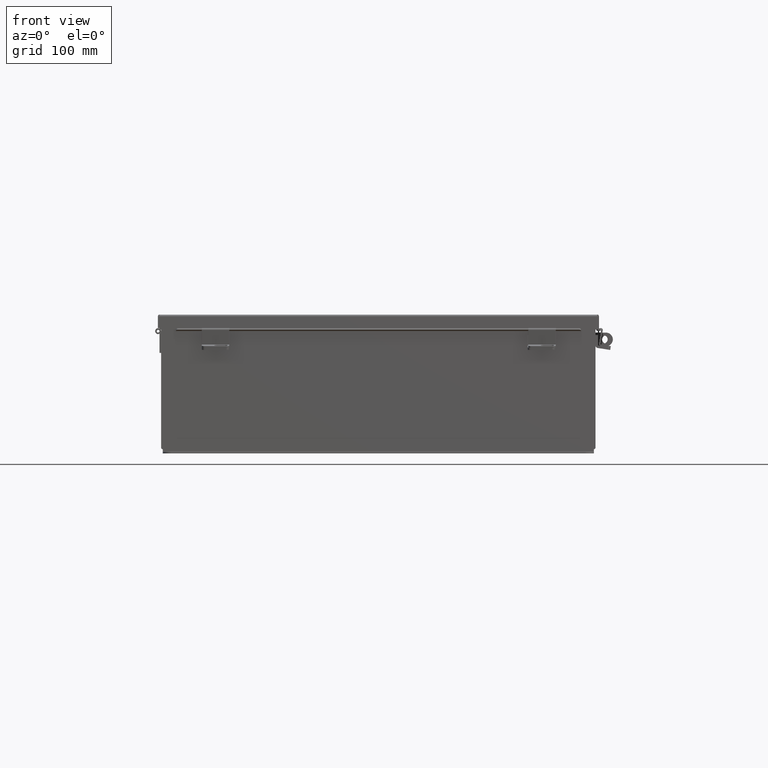
[diagram: clean part render]
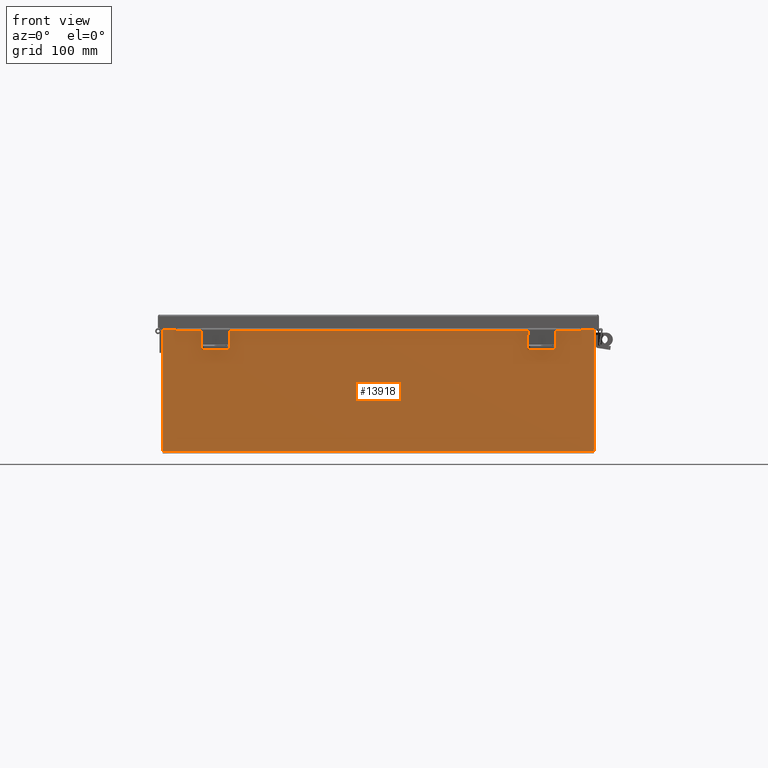
[diagram: same view with one face highlighted and labeled with its STEP entity id]
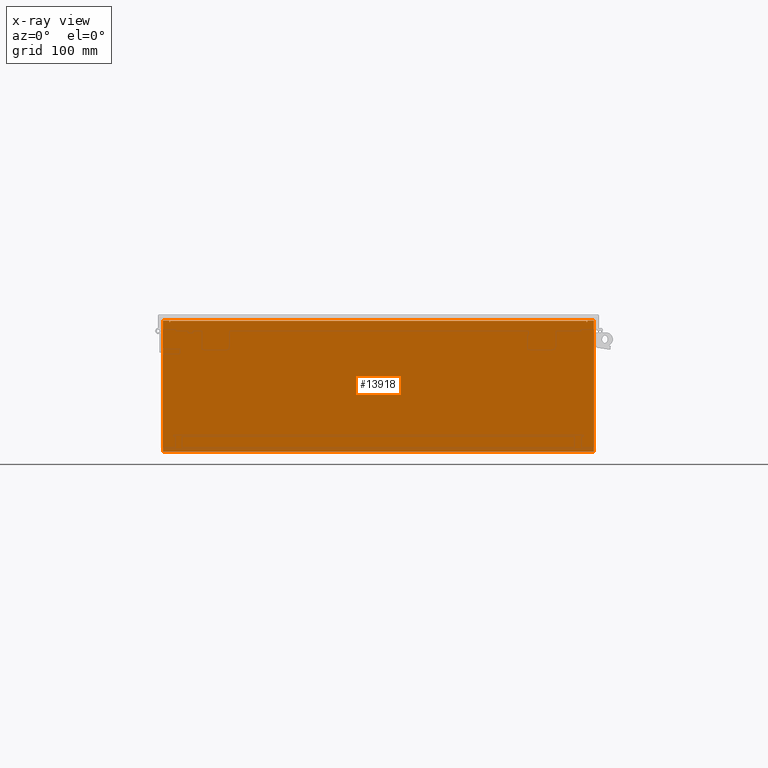
[diagram: x-ray of the same camera — body ghosted, the highlighted face saturated]
A machine part, front view. The second image highlights one B-rep face of the part: STEP entity #13918.
The next image is the same camera in x-ray: the body ghosted, the highlighted face saturated — about 0% of this face is hidden behind the body in this view.
In plain terms, the highlighted planar face has unit normal (-0, 1, -0).
Its self-contained STEP definition (entity closure, byte-faithful):
#72 = VECTOR ( 'NONE', #4881, 39.37007874015748100 ) ;
#172 = EDGE_CURVE ( 'NONE', #3207, #15195, #12966, .T. ) ;
#537 = DIRECTION ( 'NONE',  ( -2.170286390199931800E-014, -7.888609052210118100E-031, -1.000000000000000000 ) ) ;
#586 = ORIENTED_EDGE ( 'NONE', *, *, #3969, .T. ) ;
#628 = CARTESIAN_POINT ( 'NONE',  ( -9.925300000000016000, 0.0000000000000000000, 2.925300000000000000 ) ) ;
#1138 = CARTESIAN_POINT ( 'NONE',  ( -9.582299999999989400, 2.185478394931410600E-015, 2.912300000000000100 ) ) ;
#1196 = AXIS2_PLACEMENT_3D ( 'NONE', #3279, #16687, #5197 ) ;
#1513 = LINE ( 'NONE', #4380, #4784 ) ;
#1680 = CARTESIAN_POINT ( 'NONE',  ( -9.619649999999991200, 0.0000000000000000000, 2.925300000000000000 ) ) ;
#1993 = DIRECTION ( 'NONE',  ( 0.0000000000000000000, 0.0000000000000000000, -1.000000000000000000 ) ) ;
#2241 = VERTEX_POINT ( 'NONE', #12309 ) ;
#2482 = DIRECTION ( 'NONE',  ( 4.910036603141682400E-031, 1.000000000000000000, -0.0000000000000000000 ) ) ;
#2722 = CIRCLE ( 'NONE', #23957, 0.01867500000000003900 ) ;
#3161 = EDGE_CURVE ( 'NONE', #9404, #22181, #1513, .T. ) ;
#3168 = CARTESIAN_POINT ( 'NONE',  ( -9.925300000000016000, 0.0000000000000000000, 2.925300000000000000 ) ) ;
#3207 = VERTEX_POINT ( 'NONE', #21616 ) ;
#3279 = CARTESIAN_POINT ( 'NONE',  ( 9.600975000000010700, 1.748382715945128500E-014, 2.874949999999997900 ) ) ;
#3638 = VECTOR ( 'NONE', #8259, 39.37007874015748100 ) ;
#3744 = ORIENTED_EDGE ( 'NONE', *, *, #6464, .F. ) ;
#3969 = EDGE_CURVE ( 'NONE', #15409, #7338, #18432, .T. ) ;
#4380 = CARTESIAN_POINT ( 'NONE',  ( 9.619649999999939600, 0.0000000000000000000, -2.043422299260868900E-013 ) ) ;
#4600 = ORIENTED_EDGE ( 'NONE', *, *, #15779, .T. ) ;
#4609 = DIRECTION ( 'NONE',  ( 0.0000000000000000000, 0.0000000000000000000, 1.000000000000000000 ) ) ;
#4784 = VECTOR ( 'NONE', #537, 39.37007874015748100 ) ;
#4881 = DIRECTION ( 'NONE',  ( 0.0000000000000000000, 0.0000000000000000000, 1.000000000000000000 ) ) ;
#5161 = CARTESIAN_POINT ( 'NONE',  ( 9.619650000000012500, 1.748382715945128500E-014, 2.925300000000000000 ) ) ;
#5197 = DIRECTION ( 'NONE',  ( 0.0000000000000000000, 0.0000000000000000000, -1.000000000000000000 ) ) ;
#5225 = CARTESIAN_POINT ( 'NONE',  ( -9.582299999999991200, 0.0000000000000000000, 2.874949999999998800 ) ) ;
#5435 = DIRECTION ( 'NONE',  ( 1.000000000000000000, 4.910036603141682400E-031, 0.0000000000000000000 ) ) ;
#5810 = EDGE_CURVE ( 'NONE', #23437, #17830, #11943, .T. ) ;
#6154 = EDGE_LOOP ( 'NONE', ( #12690, #9652, #21102, #4600, #14337, #3744, #20158, #7790, #586, #7598, #24269, #24429 ) ) ;
#6174 = EDGE_CURVE ( 'NONE', #15195, #12346, #2722, .T. ) ;
#6464 = EDGE_CURVE ( 'NONE', #22181, #17142, #11948, .T. ) ;
#6841 = DIRECTION ( 'NONE',  ( 1.000000000000000000, 4.910036603141682400E-031, -0.0000000000000000000 ) ) ;
#7338 = VERTEX_POINT ( 'NONE', #18544 ) ;
#7598 = ORIENTED_EDGE ( 'NONE', *, *, #22544, .F. ) ;
#7604 = CARTESIAN_POINT ( 'NONE',  ( -9.619649999999991200, 0.0000000000000000000, 2.874949999999998800 ) ) ;
#7704 = CARTESIAN_POINT ( 'NONE',  ( 9.925299999999985800, 1.748382715945128500E-014, 2.925300000000000000 ) ) ;
#7790 = ORIENTED_EDGE ( 'NONE', *, *, #11258, .T. ) ;
#8255 = LINE ( 'NONE', #22037, #17887 ) ;
#8259 = DIRECTION ( 'NONE',  ( 0.0000000000000000000, 0.0000000000000000000, 1.000000000000000000 ) ) ;
#8588 = DIRECTION ( 'NONE',  ( -3.735477378271307500E-016, 0.0000000000000000000, -1.000000000000000000 ) ) ;
#8763 = CARTESIAN_POINT ( 'NONE',  ( -9.619649999999998300, 0.0000000000000000000, 0.0000000000000000000 ) ) ;
#8924 = CARTESIAN_POINT ( 'NONE',  ( 9.619650000000010700, 1.748382715945128500E-014, 2.874949999999997900 ) ) ;
#9404 = VERTEX_POINT ( 'NONE', #5161 ) ;
#9550 = VECTOR ( 'NONE', #4609, 39.37007874015748100 ) ;
#9652 = ORIENTED_EDGE ( 'NONE', *, *, #6174, .F. ) ;
#10199 = LINE ( 'NONE', #8763, #72 ) ;
#10441 = CARTESIAN_POINT ( 'NONE',  ( -9.582299999999998300, 0.0000000000000000000, 4.370956789862821100E-015 ) ) ;
#10819 = DIRECTION ( 'NONE',  ( 1.000000000000000000, 4.910036603141682400E-031, 0.0000000000000000000 ) ) ;
#11038 = AXIS2_PLACEMENT_3D ( 'NONE', #19152, #13388, #1993 ) ;
#11189 = CARTESIAN_POINT ( 'NONE',  ( 9.582300000000010700, 1.748382715945128500E-014, 2.874949999999998800 ) ) ;
#11258 = EDGE_CURVE ( 'NONE', #9404, #15409, #23923, .T. ) ;
#11943 = LINE ( 'NONE', #3168, #20974 ) ;
#11948 = CIRCLE ( 'NONE', #1196, 0.01867500000000003900 ) ;
#12309 = CARTESIAN_POINT ( 'NONE',  ( -9.925299999999992900, -2.185478394931410600E-015, -3.099299999999999900 ) ) ;
#12346 = VERTEX_POINT ( 'NONE', #7604 ) ;
#12690 = ORIENTED_EDGE ( 'NONE', *, *, #15786, .F. ) ;
#12966 = LINE ( 'NONE', #10441, #18125 ) ;
#13388 = DIRECTION ( 'NONE',  ( -4.910036603141682400E-031, -1.000000000000000000, -0.0000000000000000000 ) ) ;
#13575 = VERTEX_POINT ( 'NONE', #20732 ) ;
#13910 = CARTESIAN_POINT ( 'NONE',  ( -9.600974999999989400, 0.0000000000000000000, 2.874949999999998800 ) ) ;
#13918 = ADVANCED_FACE ( 'NONE', ( #22859 ), #17224, .F. ) ;
#13930 = VECTOR ( 'NONE', #8588, 39.37007874015748100 ) ;
#14337 = ORIENTED_EDGE ( 'NONE', *, *, #16270, .F. ) ;
#15195 = VERTEX_POINT ( 'NONE', #5225 ) ;
#15409 = VERTEX_POINT ( 'NONE', #7704 ) ;
#15779 = EDGE_CURVE ( 'NONE', #3207, #13575, #21022, .T. ) ;
#15786 = EDGE_CURVE ( 'NONE', #12346, #17830, #10199, .T. ) ;
#15869 = DIRECTION ( 'NONE',  ( 0.0000000000000000000, 0.0000000000000000000, -1.000000000000000000 ) ) ;
#16092 = CARTESIAN_POINT ( 'NONE',  ( 9.582300000000001800, 0.0000000000000000000, 0.0000000000000000000 ) ) ;
#16270 = EDGE_CURVE ( 'NONE', #17142, #13575, #24279, .T. ) ;
#16687 = DIRECTION ( 'NONE',  ( 4.910036603141682400E-031, 1.000000000000000000, -0.0000000000000000000 ) ) ;
#16941 = CARTESIAN_POINT ( 'NONE',  ( -9.925300000000016000, 0.0000000000000000000, 2.925300000000000000 ) ) ;
#17142 = VERTEX_POINT ( 'NONE', #11189 ) ;
#17224 = PLANE ( 'NONE',  #11038 ) ;
#17228 = CARTESIAN_POINT ( 'NONE',  ( -9.925300000000016000, 0.0000000000000000000, 2.925300000000000000 ) ) ;
#17830 = VERTEX_POINT ( 'NONE', #1680 ) ;
#17887 = VECTOR ( 'NONE', #23956, 39.37007874015748100 ) ;
#18125 = VECTOR ( 'NONE', #21952, 39.37007874015748100 ) ;
#18432 = LINE ( 'NONE', #22045, #13930 ) ;
#18544 = CARTESIAN_POINT ( 'NONE',  ( 9.925300000000000000, 0.0000000000000000000, -3.099299999999995500 ) ) ;
#19152 = CARTESIAN_POINT ( 'NONE',  ( 0.0000000000000000000, 0.0000000000000000000, 0.0000000000000000000 ) ) ;
#19829 = EDGE_CURVE ( 'NONE', #2241, #23437, #24605, .T. ) ;
#20158 = ORIENTED_EDGE ( 'NONE', *, *, #3161, .F. ) ;
#20417 = VECTOR ( 'NONE', #6841, 39.37007874015748100 ) ;
#20732 = CARTESIAN_POINT ( 'NONE',  ( 9.582300000000010700, 1.748382715945128500E-014, 2.912300000000000100 ) ) ;
#20974 = VECTOR ( 'NONE', #10819, 39.37007874015748100 ) ;
#21022 = LINE ( 'NONE', #1138, #20417 ) ;
#21102 = ORIENTED_EDGE ( 'NONE', *, *, #172, .F. ) ;
#21616 = CARTESIAN_POINT ( 'NONE',  ( -9.582299999999991200, 2.185478394931410600E-015, 2.912300000000000100 ) ) ;
#21952 = DIRECTION ( 'NONE',  ( 0.0000000000000000000, 0.0000000000000000000, -1.000000000000000000 ) ) ;
#22037 = CARTESIAN_POINT ( 'NONE',  ( -9.925299999999996500, -2.185478394931410600E-015, -3.099299999999999900 ) ) ;
#22045 = CARTESIAN_POINT ( 'NONE',  ( 9.925299999999985800, 1.748382715945128500E-014, 2.925300000000000000 ) ) ;
#22181 = VERTEX_POINT ( 'NONE', #8924 ) ;
#22544 = EDGE_CURVE ( 'NONE', #2241, #7338, #8255, .T. ) ;
#22859 = FACE_OUTER_BOUND ( 'NONE', #6154, .T. ) ;
#23437 = VERTEX_POINT ( 'NONE', #17228 ) ;
#23923 = LINE ( 'NONE', #16941, #24515 ) ;
#23956 = DIRECTION ( 'NONE',  ( 1.000000000000000000, 4.910036603141682400E-031, -0.0000000000000000000 ) ) ;
#23957 = AXIS2_PLACEMENT_3D ( 'NONE', #13910, #2482, #15869 ) ;
#24269 = ORIENTED_EDGE ( 'NONE', *, *, #19829, .T. ) ;
#24279 = LINE ( 'NONE', #16092, #9550 ) ;
#24429 = ORIENTED_EDGE ( 'NONE', *, *, #5810, .T. ) ;
#24515 = VECTOR ( 'NONE', #5435, 39.37007874015748100 ) ;
#24605 = LINE ( 'NONE', #628, #3638 ) ;